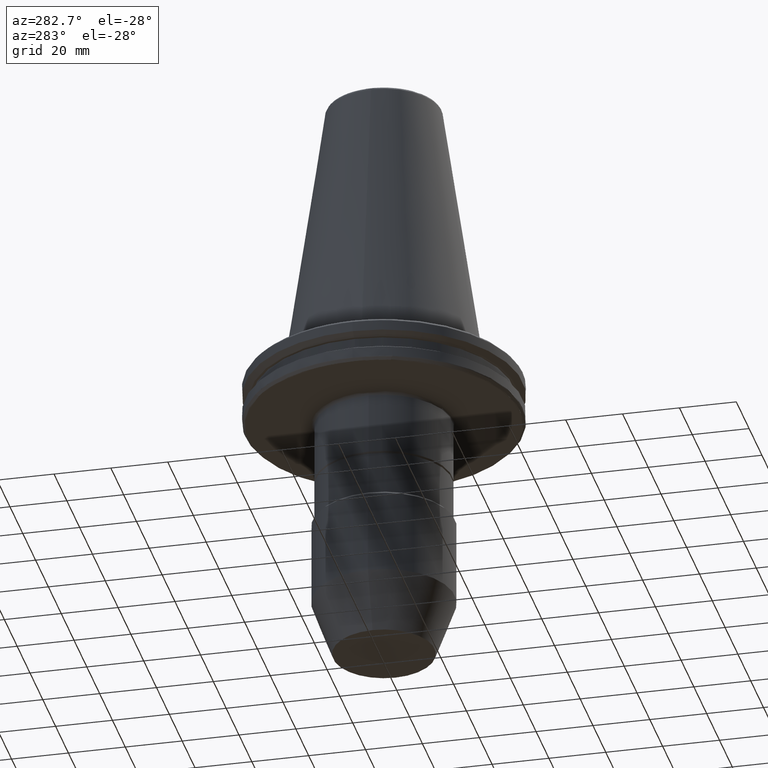
[diagram: clean part render]
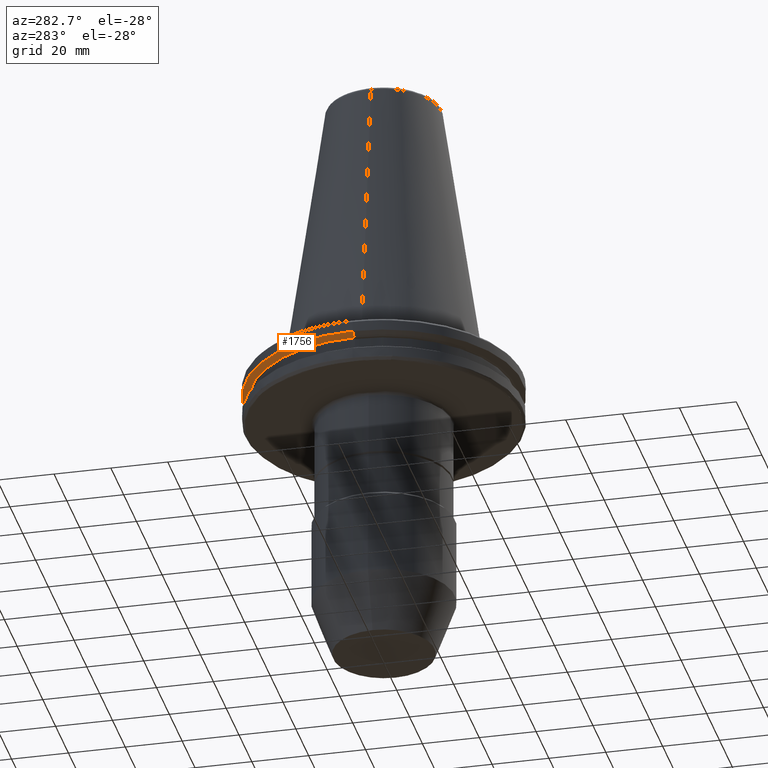
[diagram: same view with one face highlighted and labeled with its STEP entity id]
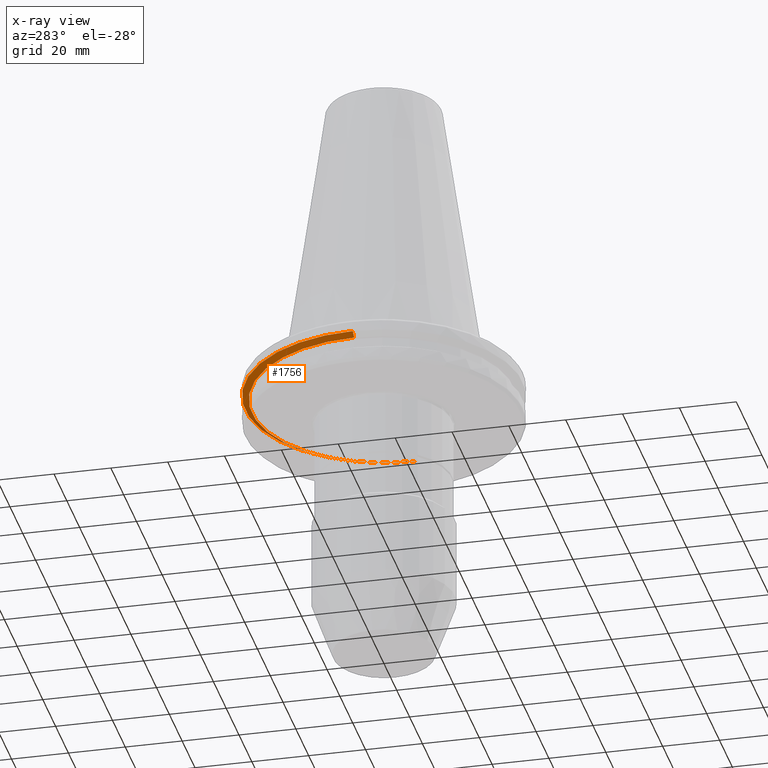
[diagram: x-ray of the same camera — body ghosted, the highlighted face saturated]
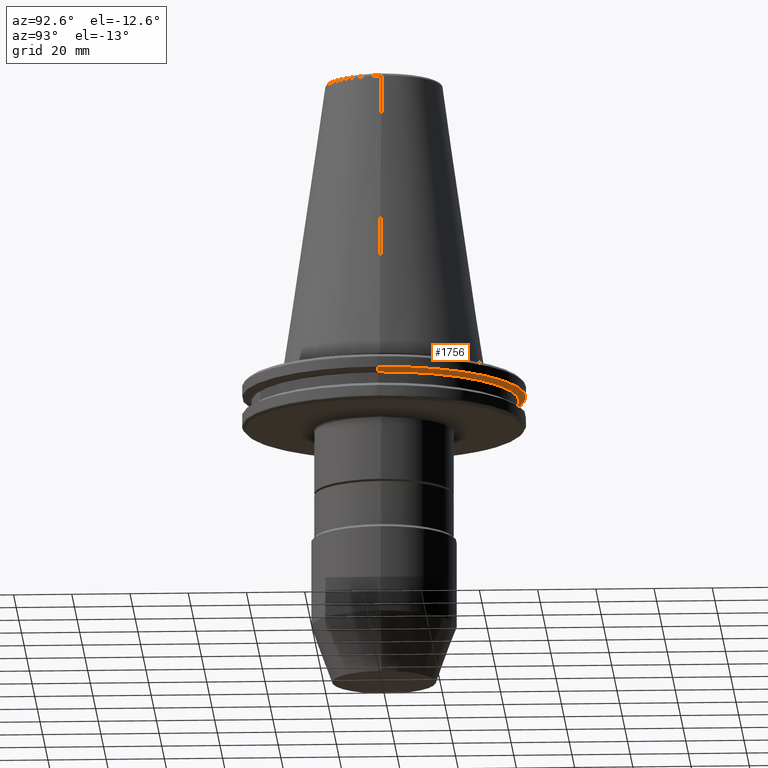
[diagram: same view with one face highlighted and labeled with its STEP entity id]
A machine part, auxiliary view. The second image highlights one B-rep face of the part: STEP entity #1756.
The next image is the same camera in x-ray: the body ghosted, the highlighted face saturated — about 2% of this face is hidden behind the body in this view.
A second angle (auxiliary view) of the same face is appended — the face is thin or edge-on in the first view.
In plain terms, the highlighted conical surface has half-angle 60 deg.
Its self-contained STEP definition (entity closure, byte-faithful):
#45 = AXIS2_PLACEMENT_3D ( 'NONE', #2914, #1320, #3185 ) ;
#340 = VECTOR ( 'NONE', #1681, 1000.000000000000000 ) ;
#369 = AXIS2_PLACEMENT_3D ( 'NONE', #3227, #3257, #3244 ) ;
#419 = LINE ( 'NONE', #1685, #340 ) ;
#505 = VECTOR ( 'NONE', #2598, 1000.000000000000000 ) ;
#539 = AXIS2_PLACEMENT_3D ( 'NONE', #2113, #2106, #3467 ) ;
#562 = ORIENTED_EDGE ( 'NONE', *, *, #1974, .F. ) ;
#602 = EDGE_CURVE ( 'NONE', #939, #1794, #3146, .T. ) ;
#749 = FACE_OUTER_BOUND ( 'NONE', #2670, .T. ) ;
#939 = VERTEX_POINT ( 'NONE', #1322 ) ;
#1043 = ORIENTED_EDGE ( 'NONE', *, *, #602, .T. ) ;
#1320 = DIRECTION ( 'NONE',  ( 0.0000000000000000000, 0.0000000000000000000, 1.000000000000000000 ) ) ;
#1322 = CARTESIAN_POINT ( 'NONE',  ( 46.41589653438085600, 0.0000000000000000000, -9.200000000000009900 ) ) ;
#1369 = CONICAL_SURFACE ( 'NONE', #369, 48.75000000000000700, 1.047197551196595900 ) ;
#1522 = VERTEX_POINT ( 'NONE', #2090 ) ;
#1560 = ORIENTED_EDGE ( 'NONE', *, *, #2849, .F. ) ;
#1681 = DIRECTION ( 'NONE',  ( -0.8660254037844377100, 1.060575238724905800E-016, 0.5000000000000016700 ) ) ;
#1685 = CARTESIAN_POINT ( 'NONE',  ( -48.75000000000000700, 5.970153145843347900E-015, -7.852404735808348400 ) ) ;
#1756 = ADVANCED_FACE ( 'NONE', ( #749 ), #1369, .T. ) ;
#1794 = VERTEX_POINT ( 'NONE', #3046 ) ;
#1974 = EDGE_CURVE ( 'NONE', #939, #1522, #2648, .T. ) ;
#2036 = EDGE_CURVE ( 'NONE', #1794, #2923, #419, .T. ) ;
#2077 = CARTESIAN_POINT ( 'NONE',  ( -48.75000000000000000, 5.970153145843347100E-015, -7.852404735808352000 ) ) ;
#2090 = CARTESIAN_POINT ( 'NONE',  ( 48.75000000000000000, 0.0000000000000000000, -7.852404735808352000 ) ) ;
#2106 = DIRECTION ( 'NONE',  ( 0.0000000000000000000, 0.0000000000000000000, 1.000000000000000000 ) ) ;
#2113 = CARTESIAN_POINT ( 'NONE',  ( 0.0000000000000000000, 0.0000000000000000000, -9.200000000000009900 ) ) ;
#2444 = CARTESIAN_POINT ( 'NONE',  ( 48.75000000000000700, 0.0000000000000000000, -7.852404735808348400 ) ) ;
#2598 = DIRECTION ( 'NONE',  ( 0.8660254037844377100, 0.0000000000000000000, 0.5000000000000016700 ) ) ;
#2648 = LINE ( 'NONE', #2444, #505 ) ;
#2670 = EDGE_LOOP ( 'NONE', ( #1043, #2949, #1560, #562 ) ) ;
#2849 = EDGE_CURVE ( 'NONE', #1522, #2923, #3357, .T. ) ;
#2914 = CARTESIAN_POINT ( 'NONE',  ( 0.0000000000000000000, 0.0000000000000000000, -7.852404735808352000 ) ) ;
#2923 = VERTEX_POINT ( 'NONE', #2077 ) ;
#2949 = ORIENTED_EDGE ( 'NONE', *, *, #2036, .T. ) ;
#3046 = CARTESIAN_POINT ( 'NONE',  ( -46.41589653438085600, 5.827230528940885300E-015, -9.200000000000009900 ) ) ;
#3146 = CIRCLE ( 'NONE', #539, 46.41589653438085600 ) ;
#3185 = DIRECTION ( 'NONE',  ( 1.000000000000000000, 0.0000000000000000000, 0.0000000000000000000 ) ) ;
#3227 = CARTESIAN_POINT ( 'NONE',  ( 0.0000000000000000000, 0.0000000000000000000, -7.852404735808348400 ) ) ;
#3244 = DIRECTION ( 'NONE',  ( 1.000000000000000000, 0.0000000000000000000, 0.0000000000000000000 ) ) ;
#3257 = DIRECTION ( 'NONE',  ( 0.0000000000000000000, 0.0000000000000000000, 1.000000000000000000 ) ) ;
#3357 = CIRCLE ( 'NONE', #45, 48.75000000000000000 ) ;
#3467 = DIRECTION ( 'NONE',  ( 1.000000000000000000, 0.0000000000000000000, 0.0000000000000000000 ) ) ;